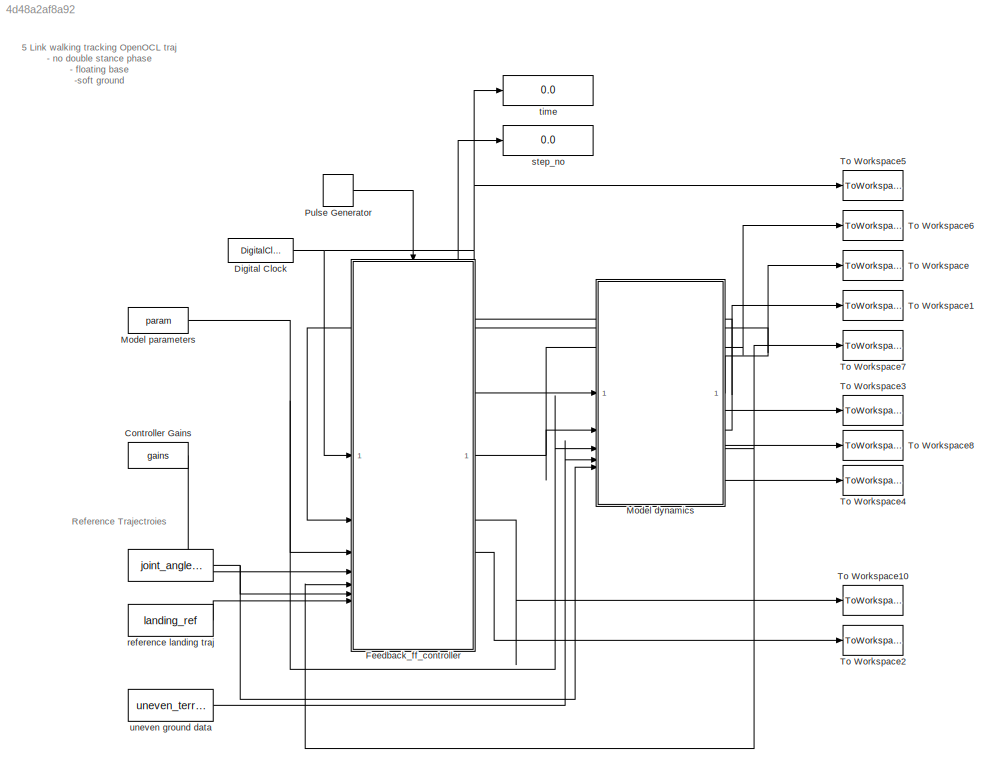
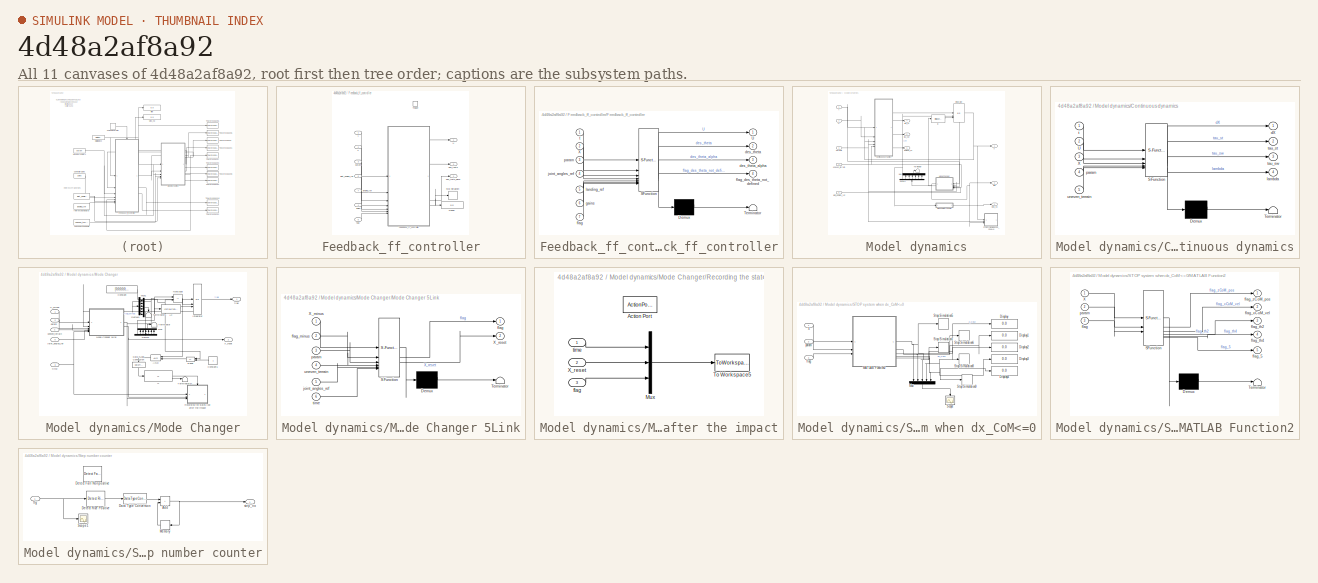
[diagram: thumbnail index - all 11 canvases of the model, root first then tree order]
MODEL slx_4d48a2af8a92
KIND model
CONFIG AbsTol = 1e-8
CONFIG EnableMultiTasking = off
CONFIG FixedStep = 1e-5
CONFIG MaxStep = 1e-3
CONFIG MinStep = auto
CONFIG RelTol = 1e-12
CONFIG SampleTimeConstraint = Unconstrained
CONFIG SolverName = FixedStepAuto
CONFIG StartTime = 0.0
CONFIG StopTime = Tf
BLOCK [Constant]  
  Value = joint_angles_ref
BLOCK [Constant] Controller Gains
  Value = gains
BLOCK [DigitalClock] Digital Clock
  SampleTime = 1e-4
BLOCK [SubSystem] Feedback_ff_controller
  TreatAsAtomicUnit = on
BLOCK [Display] Feedback_ff_controller/Display
  Decimation = 1
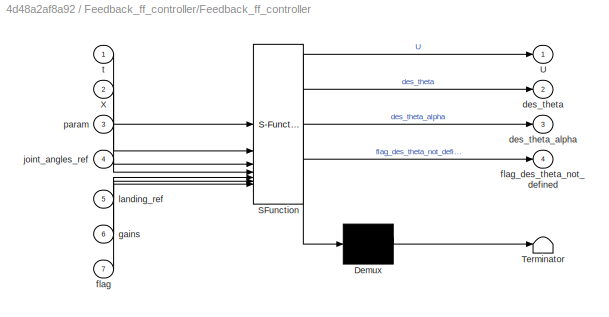
BLOCK [SubSystem] Feedback_ff_controller/Feedback_ff_controller
  ErrorFcn = Stateflow.Translate.translate
  PermitHierarchicalResolution = ExplicitOnly
  SFBlockType = MATLAB Function
  TreatAsAtomicUnit = on
BLOCK [Demux] Feedback_ff_controller/Feedback_ff_controller/ Demux 
  Outputs = 1
BLOCK [S-Function] Feedback_ff_controller/Feedback_ff_controller/ SFunction 
  EnableBusSupport = on
  FunctionName = sf_sfun
  PortCounts = [7 5]
  SFcnIsStateOwnerBlock = off
  SFunctionDeploymentMode = off
  Tag = Stateflow S-Function 4
BLOCK [Terminator] Feedback_ff_controller/Feedback_ff_controller/ Terminator 
BLOCK [Outport] Feedback_ff_controller/Feedback_ff_controller/U
  VectorParamsAs1DForOutWhenUnconnected = off
BLOCK [Inport] Feedback_ff_controller/Feedback_ff_controller/X
  Port = 2
BLOCK [Outport] Feedback_ff_controller/Feedback_ff_controller/des_theta
  Port = 2
BLOCK [Outport] Feedback_ff_controller/Feedback_ff_controller/des_theta_alpha
  Port = 3
BLOCK [Inport] Feedback_ff_controller/Feedback_ff_controller/flag
  Port = 7
BLOCK [Outport] Feedback_ff_controller/Feedback_ff_controller/flag_des_theta_not_defined
  Port = 4
BLOCK [Inport] Feedback_ff_controller/Feedback_ff_controller/gains
  Port = 6
BLOCK [Inport] Feedback_ff_controller/Feedback_ff_controller/joint_angles_ref
  Port = 4
BLOCK [Inport] Feedback_ff_controller/Feedback_ff_controller/landing_ref
  Port = 5
BLOCK [Inport] Feedback_ff_controller/Feedback_ff_controller/param
  Port = 3
BLOCK [Inport] Feedback_ff_controller/Feedback_ff_controller/t
BLOCK [Stop] Feedback_ff_controller/Stop Simulation
BLOCK [TriggerPort] Feedback_ff_controller/Trigger
  PortDimensions = 1
  StatesWhenEnabling = held
  VariantControl = Variant
BLOCK [Outport] Feedback_ff_controller/U
  VectorParamsAs1DForOutWhenUnconnected = off
BLOCK [Inport] Feedback_ff_controller/X
  Port = 2
BLOCK [Outport] Feedback_ff_controller/des_theta
  InitialOutput = [0;0;0;0;0; 0;0;0;0;0]
  Port = 3
  VectorParamsAs1DForOutWhenUnconnected = off
BLOCK [Outport] Feedback_ff_controller/des_theta_alpha
  InitialOutput = [0;0;0;0;0; 0;0;0;0;0; 0]
  Port = 2
  VectorParamsAs1DForOutWhenUnconnected = off
BLOCK [Inport] Feedback_ff_controller/flag
  Port = 5
BLOCK [Inport] Feedback_ff_controller/gains
  Port = 4
BLOCK [Inport] Feedback_ff_controller/joint_angles_ref
  Port = 6
BLOCK [Inport] Feedback_ff_controller/landing_ref
  Port = 7
BLOCK [Inport] Feedback_ff_controller/param
  Port = 3
BLOCK [Inport] Feedback_ff_controller/t
BLOCK [SubSystem] Model dynamics
BLOCK [SubSystem] Model dynamics/Continuous dynamics
  ErrorFcn = Stateflow.Translate.translate
  PermitHierarchicalResolution = ExplicitOnly
  SFBlockType = MATLAB Function
  TreatAsAtomicUnit = on
BLOCK [Demux] Model dynamics/Continuous dynamics/ Demux 
  Outputs = 1
BLOCK [S-Function] Model dynamics/Continuous dynamics/ SFunction 
  EnableBusSupport = on
  FunctionName = sf_sfun
  PortCounts = [5 5]
  SFcnIsStateOwnerBlock = off
  SFunctionDeploymentMode = off
  Tag = Stateflow S-Function 2
BLOCK [Terminator] Model dynamics/Continuous dynamics/ Terminator 
BLOCK [Inport] Model dynamics/Continuous dynamics/U
  Port = 2
BLOCK [Inport] Model dynamics/Continuous dynamics/X
  Port = 3
BLOCK [Outport] Model dynamics/Continuous dynamics/dX
  VectorParamsAs1DForOutWhenUnconnected = off
BLOCK [Outport] Model dynamics/Continuous dynamics/lambda
  Port = 4
BLOCK [Inport] Model dynamics/Continuous dynamics/param
  Port = 4
BLOCK [Inport] Model dynamics/Continuous dynamics/t
BLOCK [Outport] Model dynamics/Continuous dynamics/tau_st
  Port = 2
  VectorParamsAs1DForOutWhenUnconnected = off
BLOCK [Outport] Model dynamics/Continuous dynamics/tau_sw
  Port = 3
BLOCK [Inport] Model dynamics/Continuous dynamics/uneven_terrain
  Port = 5
BLOCK [Demux] Model dynamics/Demux1
  NameLocation = right
  Outputs = 7
BLOCK [InitialCondition] Model dynamics/IC
  Value = Initial_state
BLOCK [Integrator] Model dynamics/Integrator
  ExternalReset = rising
  InitialConditionSource = external
  NameLocation = top
  ShowStatePort = on
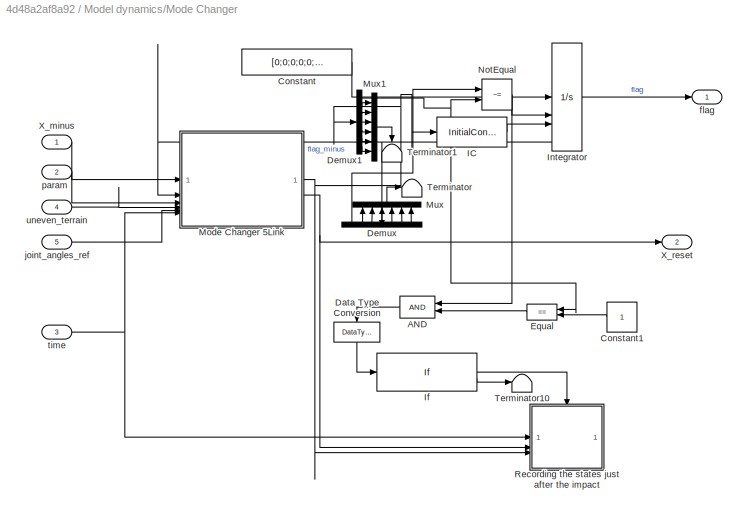
BLOCK [SubSystem] Model dynamics/Mode Changer
  NameLocation = top
BLOCK [Logic] Model dynamics/Mode Changer/AND
  AllPortsSameDT = off
  IconShape = distinctive
  NameLocation = top
  OutDataTypeStr = boolean
BLOCK [Constant] Model dynamics/Mode Changer/Constant
  Value = [0;0;0;0;0;0;0]
BLOCK [Constant] Model dynamics/Mode Changer/Constant1
  NameLocation = top
BLOCK [DataTypeConversion] Model dynamics/Mode Changer/Data Type Conversion
  NameLocation = left
  OutDataTypeStr = double
  RndMeth = Floor
  SaturateOnIntegerOverflow = off
BLOCK [Demux] Model dynamics/Mode Changer/Demux
  NameLocation = right
  Outputs = 7
BLOCK [Demux] Model dynamics/Mode Changer/Demux1
  Outputs = 7
BLOCK [RelationalOperator] Model dynamics/Mode Changer/Equal
  InputSameDT = off
  NameLocation = top
  Operator = ==
  OutDataTypeStr = boolean
  RndMeth = Simplest
BLOCK [InitialCondition] Model dynamics/Mode Changer/IC
  Value = init_flag
BLOCK [If] Model dynamics/Mode Changer/If
BLOCK [Integrator] Model dynamics/Mode Changer/Integrator
  ExternalReset = rising
  InitialConditionSource = external
  NameLocation = top
  ShowStatePort = on
BLOCK [SubSystem] Model dynamics/Mode Changer/Mode Changer 5Link
  ErrorFcn = Stateflow.Translate.translate
  PermitHierarchicalResolution = ExplicitOnly
  SFBlockType = MATLAB Function
  TreatAsAtomicUnit = on
BLOCK [Demux] Model dynamics/Mode Changer/Mode Changer 5Link/ Demux 
  Outputs = 1
BLOCK [S-Function] Model dynamics/Mode Changer/Mode Changer 5Link/ SFunction 
  EnableBusSupport = on
  FunctionName = sf_sfun
  PortCounts = [6 3]
  SFcnIsStateOwnerBlock = off
  SFunctionDeploymentMode = off
  Tag = Stateflow S-Function 6
BLOCK [Terminator] Model dynamics/Mode Changer/Mode Changer 5Link/ Terminator 
BLOCK [Inport] Model dynamics/Mode Changer/Mode Changer 5Link/X_minus
BLOCK [Outport] Model dynamics/Mode Changer/Mode Changer 5Link/X_reset
  Port = 2
  VectorParamsAs1DForOutWhenUnconnected = off
BLOCK [Outport] Model dynamics/Mode Changer/Mode Changer 5Link/flag
  VectorParamsAs1DForOutWhenUnconnected = off
BLOCK [Inport] Model dynamics/Mode Changer/Mode Changer 5Link/flag_minus
  Port = 2
BLOCK [Inport] Model dynamics/Mode Changer/Mode Changer 5Link/joint_angles_ref
  Port = 5
BLOCK [Inport] Model dynamics/Mode Changer/Mode Changer 5Link/param
  Port = 3
BLOCK [Inport] Model dynamics/Mode Changer/Mode Changer 5Link/time
  Port = 6
BLOCK [Inport] Model dynamics/Mode Changer/Mode Changer 5Link/uneven_terrain
  Port = 4
BLOCK [Mux] Model dynamics/Mode Changer/Mux
  DisplayOption = bar
  Inputs = 6
  NameLocation = right
BLOCK [Mux] Model dynamics/Mode Changer/Mux1
  DisplayOption = bar
  Inputs = 6
BLOCK [RelationalOperator] Model dynamics/Mode Changer/NotEqual
  InputSameDT = off
  Operator = ~=
  OutDataTypeStr = boolean
  RndMeth = Simplest
BLOCK [SubSystem] Model dynamics/Mode Changer/Recording the states just after the impact
  TreatAsAtomicUnit = on
BLOCK [ActionPort] Model dynamics/Mode Changer/Recording the states just after the impact/Action Port
  ActionPortLabel = if(u1 > 0)
BLOCK [Mux] Model dynamics/Mode Changer/Recording the states just after the impact/Mux
  DisplayOption = bar
  Inputs = 3
BLOCK [ToWorkspace] Model dynamics/Mode Changer/Recording the states just after the impact/To Workspace5
  FixptAsFi = on
  MaxDataPoints = inf
  SampleTime = -1
  VariableName = x_plus
BLOCK [Inport] Model dynamics/Mode Changer/Recording the states just after the impact/X_reset
  Port = 2
BLOCK [Inport] Model dynamics/Mode Changer/Recording the states just after the impact/flag
  Port = 3
BLOCK [Inport] Model dynamics/Mode Changer/Recording the states just after the impact/time
BLOCK [Terminator] Model dynamics/Mode Changer/Terminator
BLOCK [Terminator] Model dynamics/Mode Changer/Terminator1
  NameLocation = left
BLOCK [Terminator] Model dynamics/Mode Changer/Terminator10
BLOCK [Inport] Model dynamics/Mode Changer/X_minus
BLOCK [Outport] Model dynamics/Mode Changer/X_reset
  Port = 2
  VectorParamsAs1DForOutWhenUnconnected = off
BLOCK [Outport] Model dynamics/Mode Changer/flag
  VectorParamsAs1DForOutWhenUnconnected = off
BLOCK [Inport] Model dynamics/Mode Changer/joint_angles_ref
  Port = 5
BLOCK [Inport] Model dynamics/Mode Changer/param 
  Port = 2
BLOCK [Inport] Model dynamics/Mode Changer/time
  Port = 3
BLOCK [Inport] Model dynamics/Mode Changer/uneven_terrain
  Port = 4
BLOCK [Mux] Model dynamics/Mux
  DisplayOption = bar
  Inputs = 6
  NameLocation = right
BLOCK [SubSystem] Model dynamics/STOP system when dx_CoM<=0
BLOCK [Display] Model dynamics/STOP system when dx_CoM<=0/Display
  Decimation = 1
BLOCK [Display] Model dynamics/STOP system when dx_CoM<=0/Display1
  Decimation = 1
BLOCK [Display] Model dynamics/STOP system when dx_CoM<=0/Display2
  Decimation = 1
BLOCK [Display] Model dynamics/STOP system when dx_CoM<=0/Display3
  Decimation = 1
BLOCK [Display] Model dynamics/STOP system when dx_CoM<=0/Display4
  Decimation = 1
BLOCK [SubSystem] Model dynamics/STOP system when dx_CoM<=0/MATLAB Function2
  ErrorFcn = Stateflow.Translate.translate
  PermitHierarchicalResolution = ExplicitOnly
  SFBlockType = MATLAB Function
  TreatAsAtomicUnit = on
BLOCK [Demux] Model dynamics/STOP system when dx_CoM<=0/MATLAB Function2/ Demux 
  Outputs = 1
BLOCK [S-Function] Model dynamics/STOP system when dx_CoM<=0/MATLAB Function2/ SFunction 
  EnableBusSupport = on
  FunctionName = sf_sfun
  PortCounts = [3 6]
  SFcnIsStateOwnerBlock = off
  SFunctionDeploymentMode = off
  Tag = Stateflow S-Function 7
BLOCK [Terminator] Model dynamics/STOP system when dx_CoM<=0/MATLAB Function2/ Terminator 
BLOCK [Inport] Model dynamics/STOP system when dx_CoM<=0/MATLAB Function2/X
BLOCK [Inport] Model dynamics/STOP system when dx_CoM<=0/MATLAB Function2/flag
  Port = 3
BLOCK [Outport] Model dynamics/STOP system when dx_CoM<=0/MATLAB Function2/flag_5
  Port = 5
BLOCK [Outport] Model dynamics/STOP system when dx_CoM<=0/MATLAB Function2/flag_th2
  Port = 3
BLOCK [Outport] Model dynamics/STOP system when dx_CoM<=0/MATLAB Function2/flag_th4
  Port = 4
BLOCK [Outport] Model dynamics/STOP system when dx_CoM<=0/MATLAB Function2/flag_xCoM_vel
  Port = 2
BLOCK [Outport] Model dynamics/STOP system when dx_CoM<=0/MATLAB Function2/flag_zCoM_pos
BLOCK [Inport] Model dynamics/STOP system when dx_CoM<=0/MATLAB Function2/param
  Port = 2
BLOCK [Mux] Model dynamics/STOP system when dx_CoM<=0/Mux
  DisplayOption = bar
  Inputs = 5
  NameLocation = left
BLOCK [Scope] Model dynamics/STOP system when dx_CoM<=0/Scope
  Floating = off
  NameLocation = left
  NumInputPorts = 1
  ScopeSpecificationString = Simulink.scopes.TimeScopeBlockCfg('CurrentConfiguration', extmgr.ConfigurationSet(extmgr.Configuration('Core','General UI',true),extmgr.Configuration('Core','Source UI',true),extmgr.Configuration('Sources','WiredSimulink',true,'DataLoggingVariableName','ScopeData1'),extmgr.Configuration('Visuals','Time Domain',true,'SerializedDisplays',{struct('MinYLimReal','-0.125','MaxYLimReal','1.125','YLabelRe...<+1417ch>
BLOCK [Stop] Model dynamics/STOP system when dx_CoM<=0/Stop Simulation5
BLOCK [Stop] Model dynamics/STOP system when dx_CoM<=0/Stop Simulation6
BLOCK [Stop] Model dynamics/STOP system when dx_CoM<=0/Stop Simulation7
BLOCK [Stop] Model dynamics/STOP system when dx_CoM<=0/Stop Simulation8
BLOCK [Stop] Model dynamics/STOP system when dx_CoM<=0/Stop Simulation9
BLOCK [Inport] Model dynamics/STOP system when dx_CoM<=0/X
BLOCK [Inport] Model dynamics/STOP system when dx_CoM<=0/flag
  Port = 3
BLOCK [Inport] Model dynamics/STOP system when dx_CoM<=0/param
  Port = 2
BLOCK [SubSystem] Model dynamics/Step number counter
BLOCK [Sum] Model dynamics/Step number counter/Add
  IconShape = rectangular
BLOCK [DataTypeConversion] Model dynamics/Step number counter/Data Type Conversion
  OutDataTypeStr = double
  RndMeth = Floor
  SaturateOnIntegerOverflow = off
BLOCK [Reference] Model dynamics/Step number counter/Detect Fall Nonpositive  REF=simulink/Logic and Bit
Operations/Detect Fall
Nonpositive
  Commented = on
  SourceBlock = simulink/Logic and Bit\nOperations/Detect Fall\nNonpositive
  SourceType = Detect Fall Nonpositive
BLOCK [Reference] Model dynamics/Step number counter/Detect Rise Positive  REF=simulink/Logic and Bit
Operations/Detect Rise
Positive
  SourceBlock = simulink/Logic and Bit\nOperations/Detect Rise\nPositive
  SourceType = Detect Rise Positive
BLOCK [Memory] Model dynamics/Step number counter/Memory
  InheritSampleTime = on
  NameLocation = top
BLOCK [Scope] Model dynamics/Step number counter/Scope1
  Floating = off
  NumInputPorts = 1
  ScopeSpecificationString = Simulink.scopes.TimeScopeBlockCfg('CurrentConfiguration', extmgr.ConfigurationSet(extmgr.Configuration('Core','General UI',true),extmgr.Configuration('Core','Source UI',true),extmgr.Configuration('Sources','WiredSimulink',true,'DataLoggingVariableName','ScopeData1'),extmgr.Configuration('Visuals','Time Domain',true,'SerializedDisplays',{struct('MinYLimReal','-0.125','MaxYLimReal','1.125','YLabelRe...<+1422ch>
BLOCK [Inport] Model dynamics/Step number counter/flg
  SampleTime = sample_time
BLOCK [Outport] Model dynamics/Step number counter/step_no
  VectorParamsAs1DForOutWhenUnconnected = off
BLOCK [Terminator] Model dynamics/Terminator
BLOCK [Inport] Model dynamics/U
  Port = 2
BLOCK [Outport] Model dynamics/X
  VectorParamsAs1DForOutWhenUnconnected = off
BLOCK [Outport] Model dynamics/flag
  Port = 3
BLOCK [Inport] Model dynamics/joint_angles_ref
  Port = 5
BLOCK [Outport] Model dynamics/lambda_ss
  Port = 6
  VectorParamsAs1DForOutWhenUnconnected = off
BLOCK [Inport] Model dynamics/params
  Port = 3
BLOCK [Outport] Model dynamics/step_no
  Port = 2
  VectorParamsAs1DForOutWhenUnconnected = off
BLOCK [Inport] Model dynamics/t
BLOCK [Outport] Model dynamics/tau_st
  Port = 4
  VectorParamsAs1DForOutWhenUnconnected = off
BLOCK [Outport] Model dynamics/tau_sw
  Port = 5
  VectorParamsAs1DForOutWhenUnconnected = off
BLOCK [Inport] Model dynamics/uneven_terrain
  Port = 4
BLOCK [Constant] Model parameters
  NameLocation = top
  OutDataTypeStr = double
  Value = param
BLOCK [DiscretePulseGenerator] Pulse Generator
  Period = 5e-4
  PulseType = Time based
  PulseWidth = 5
BLOCK [ToWorkspace] To Workspace
  FixptAsFi = on
  MaxDataPoints = inf
  SampleTime = sample_time
  VariableName = simout
BLOCK [ToWorkspace] To Workspace1
  FixptAsFi = on
  MaxDataPoints = inf
  SampleTime = sample_time
  VariableName = step_no
BLOCK [ToWorkspace] To Workspace10
  FixptAsFi = on
  MaxDataPoints = inf
  SampleTime = sample_time
  VariableName = des_theta_alpha
BLOCK [ToWorkspace] To Workspace2
  FixptAsFi = on
  MaxDataPoints = inf
  SampleTime = sample_time
  VariableName = des_theta
BLOCK [ToWorkspace] To Workspace3
  FixptAsFi = on
  MaxDataPoints = inf
  SampleTime = sample_time
  VariableName = tau_st
BLOCK [ToWorkspace] To Workspace4
  FixptAsFi = on
  MaxDataPoints = inf
  SampleTime = sample_time
  VariableName = lambda_SS
BLOCK [ToWorkspace] To Workspace5
  FixptAsFi = on
  MaxDataPoints = inf
  SampleTime = sample_time
  VariableName = time
BLOCK [ToWorkspace] To Workspace6
  FixptAsFi = on
  MaxDataPoints = inf
  SampleTime = sample_time
  VariableName = inputTorque
BLOCK [ToWorkspace] To Workspace7
  FixptAsFi = on
  MaxDataPoints = inf
  SampleTime = sample_time
  VariableName = flag
BLOCK [ToWorkspace] To Workspace8
  FixptAsFi = on
  MaxDataPoints = inf
  SampleTime = sample_time
  VariableName = tau_sw
BLOCK [Constant] reference landing traj
  Value = landing_ref
BLOCK [Display] step_no
  Decimation = 1
BLOCK [Display] time
  Decimation = 1
BLOCK [Constant] uneven ground data
  OutDataTypeStr = Bus: uneven_terrain_bus
  Value = uneven_terrain
ANNOTATION (root): 5 Link walking tracking OpenOCL traj - no double stance phase - floating base -soft ground
ANNOTATION (root): Reference Trajectroies
NET  :1 -> Feedback_ff_controller:6, Model dynamics:5
LINE Controller Gains:1 -> Feedback_ff_controller:4
NET Digital Clock:1 -> Feedback_ff_controller:1, Model dynamics:1, To Workspace5:1, time:1
LINE Feedback_ff_controller/Feedback_ff_controller:1 -> Feedback_ff_controller/U:1
LINE Feedback_ff_controller/Feedback_ff_controller:2 -> Feedback_ff_controller/des_theta:1
LINE Feedback_ff_controller/Feedback_ff_controller:3 -> Feedback_ff_controller/des_theta_alpha:1
NET Feedback_ff_controller/Feedback_ff_controller:4 -> Feedback_ff_controller/Display:1, Feedback_ff_controller/Stop Simulation:1
LINE Feedback_ff_controller/X:1 -> Feedback_ff_controller/Feedback_ff_controller:2
LINE Feedback_ff_controller/flag:1 -> Feedback_ff_controller/Feedback_ff_controller:7
LINE Feedback_ff_controller/gains:1 -> Feedback_ff_controller/Feedback_ff_controller:6
LINE Feedback_ff_controller/joint_angles_ref:1 -> Feedback_ff_controller/Feedback_ff_controller:4
LINE Feedback_ff_controller/landing_ref:1 -> Feedback_ff_controller/Feedback_ff_controller:5
LINE Feedback_ff_controller/param:1 -> Feedback_ff_controller/Feedback_ff_controller:3
LINE Feedback_ff_controller/t:1 -> Feedback_ff_controller/Feedback_ff_controller:1
NET Feedback_ff_controller:1 -> Model dynamics:2, To Workspace6:1
LINE Feedback_ff_controller:2 -> To Workspace10:1
LINE Feedback_ff_controller:3 -> To Workspace2:1
LINE Model dynamics/Continuous dynamics:1 -> Model dynamics/Integrator:1
LINE Model dynamics/Continuous dynamics:2 -> Model dynamics/tau_st:1
LINE Model dynamics/Continuous dynamics:3 -> Model dynamics/tau_sw:1
LINE Model dynamics/Continuous dynamics:4 -> Model dynamics/lambda_ss:1
NET Model dynamics/Demux1:1 -> Model dynamics/Integrator:2, Model dynamics/Step number counter:1
LINE Model dynamics/Demux1:2 -> Model dynamics/Mux:1
LINE Model dynamics/Demux1:3 -> Model dynamics/Mux:2
LINE Model dynamics/Demux1:4 -> Model dynamics/Mux:3
LINE Model dynamics/Demux1:5 -> Model dynamics/Mux:4
LINE Model dynamics/Demux1:6 -> Model dynamics/Mux:5
LINE Model dynamics/Demux1:7 -> Model dynamics/Mux:6
LINE Model dynamics/IC:1 -> Model dynamics/Integrator:3
NET Model dynamics/Integrator:1 -> Model dynamics/Continuous dynamics:3, Model dynamics/STOP system when dx_CoM<=0:1, Model dynamics/X:1
LINE Model dynamics/Integrator:state -> Model dynamics/Mode Changer:1
LINE Model dynamics/Mode Changer/AND:1 -> Model dynamics/Mode Changer/Data Type Conversion:1
LINE Model dynamics/Mode Changer/Constant1:1 -> Model dynamics/Mode Changer/Equal:2
LINE Model dynamics/Mode Changer/Constant:1 -> Model dynamics/Mode Changer/Integrator:1
LINE Model dynamics/Mode Changer/Data Type Conversion:1 -> Model dynamics/Mode Changer/If:1
NET Model dynamics/Mode Changer/Demux1:1 -> Model dynamics/Mode Changer/Equal:1, Model dynamics/Mode Changer/NotEqual:2
LINE Model dynamics/Mode Changer/Demux1:2 -> Model dynamics/Mode Changer/Mux1:1
LINE Model dynamics/Mode Changer/Demux1:3 -> Model dynamics/Mode Changer/Mux1:2
LINE Model dynamics/Mode Changer/Demux1:4 -> Model dynamics/Mode Changer/Mux1:3
LINE Model dynamics/Mode Changer/Demux1:5 -> Model dynamics/Mode Changer/Mux1:4
LINE Model dynamics/Mode Changer/Demux1:6 -> Model dynamics/Mode Changer/Mux1:5
LINE Model dynamics/Mode Changer/Demux1:7 -> Model dynamics/Mode Changer/Mux1:6
LINE Model dynamics/Mode Changer/Demux:1 -> Model dynamics/Mode Changer/NotEqual:1
LINE Model dynamics/Mode Changer/Demux:2 -> Model dynamics/Mode Changer/Mux:1
LINE Model dynamics/Mode Changer/Demux:3 -> Model dynamics/Mode Changer/Mux:2
LINE Model dynamics/Mode Changer/Demux:4 -> Model dynamics/Mode Changer/Mux:3
LINE Model dynamics/Mode Changer/Demux:5 -> Model dynamics/Mode Changer/Mux:4
LINE Model dynamics/Mode Changer/Demux:6 -> Model dynamics/Mode Changer/Mux:5
LINE Model dynamics/Mode Changer/Demux:7 -> Model dynamics/Mode Changer/Mux:6
LINE Model dynamics/Mode Changer/Equal:1 -> Model dynamics/Mode Changer/AND:2
LINE Model dynamics/Mode Changer/IC:1 -> Model dynamics/Mode Changer/Integrator:3
LINE Model dynamics/Mode Changer/If:1 -> Model dynamics/Mode Changer/Recording the states just after the impact:ifaction
LINE Model dynamics/Mode Changer/If:2 -> Model dynamics/Mode Changer/Terminator10:1
LINE Model dynamics/Mode Changer/Integrator:1 -> Model dynamics/Mode Changer/flag:1
NET Model dynamics/Mode Changer/Integrator:state -> Model dynamics/Mode Changer/Demux:1, Model dynamics/Mode Changer/Mode Changer 5Link:2
NET Model dynamics/Mode Changer/Mode Changer 5Link:1 -> Model dynamics/Mode Changer/Demux1:1, Model dynamics/Mode Changer/IC:1, Model dynamics/Mode Changer/Recording the states just after the impact:3
NET Model dynamics/Mode Changer/Mode Changer 5Link:2 -> Model dynamics/Mode Changer/Recording the states just after the impact:2, Model dynamics/Mode Changer/X_reset:1
LINE Model dynamics/Mode Changer/Mux1:1 -> Model dynamics/Mode Changer/Terminator1:1
LINE Model dynamics/Mode Changer/Mux:1 -> Model dynamics/Mode Changer/Terminator:1
NET Model dynamics/Mode Changer/NotEqual:1 -> Model dynamics/Mode Changer/AND:1, Model dynamics/Mode Changer/Integrator:2
LINE Model dynamics/Mode Changer/Recording the states just after the impact/Mux:1 -> Model dynamics/Mode Changer/Recording the states just after the impact/To Workspace5:1
LINE Model dynamics/Mode Changer/Recording the states just after the impact/X_reset:1 -> Model dynamics/Mode Changer/Recording the states just after the impact/Mux:2
LINE Model dynamics/Mode Changer/Recording the states just after the impact/flag:1 -> Model dynamics/Mode Changer/Recording the states just after the impact/Mux:3
LINE Model dynamics/Mode Changer/Recording the states just after the impact/time:1 -> Model dynamics/Mode Changer/Recording the states just after the impact/Mux:1
LINE Model dynamics/Mode Changer/X_minus:1 -> Model dynamics/Mode Changer/Mode Changer 5Link:1
LINE Model dynamics/Mode Changer/joint_angles_ref:1 -> Model dynamics/Mode Changer/Mode Changer 5Link:5
LINE Model dynamics/Mode Changer/param :1 -> Model dynamics/Mode Changer/Mode Changer 5Link:3
NET Model dynamics/Mode Changer/time:1 -> Model dynamics/Mode Changer/Mode Changer 5Link:6, Model dynamics/Mode Changer/Recording the states just after the impact:1
LINE Model dynamics/Mode Changer/uneven_terrain:1 -> Model dynamics/Mode Changer/Mode Changer 5Link:4
NET Model dynamics/Mode Changer:1 -> Model dynamics/Demux1:1, Model dynamics/STOP system when dx_CoM<=0:3, Model dynamics/flag:1
LINE Model dynamics/Mode Changer:2 -> Model dynamics/IC:1
LINE Model dynamics/Mux:1 -> Model dynamics/Terminator:1
NET Model dynamics/STOP system when dx_CoM<=0/MATLAB Function2:1 -> Model dynamics/STOP system when dx_CoM<=0/Display:1, Model dynamics/STOP system when dx_CoM<=0/Mux:1, Model dynamics/STOP system when dx_CoM<=0/Stop Simulation5:1
NET Model dynamics/STOP system when dx_CoM<=0/MATLAB Function2:2 -> Model dynamics/STOP system when dx_CoM<=0/Display1:1, Model dynamics/STOP system when dx_CoM<=0/Mux:2, Model dynamics/STOP system when dx_CoM<=0/Stop Simulation6:1
NET Model dynamics/STOP system when dx_CoM<=0/MATLAB Function2:3 -> Model dynamics/STOP system when dx_CoM<=0/Display2:1, Model dynamics/STOP system when dx_CoM<=0/Mux:3, Model dynamics/STOP system when dx_CoM<=0/Stop Simulation7:1
NET Model dynamics/STOP system when dx_CoM<=0/MATLAB Function2:4 -> Model dynamics/STOP system when dx_CoM<=0/Display3:1, Model dynamics/STOP system when dx_CoM<=0/Mux:4, Model dynamics/STOP system when dx_CoM<=0/Stop Simulation8:1
NET Model dynamics/STOP system when dx_CoM<=0/MATLAB Function2:5 -> Model dynamics/STOP system when dx_CoM<=0/Display4:1, Model dynamics/STOP system when dx_CoM<=0/Mux:5, Model dynamics/STOP system when dx_CoM<=0/Stop Simulation9:1
LINE Model dynamics/STOP system when dx_CoM<=0/Mux:1 -> Model dynamics/STOP system when dx_CoM<=0/Scope:1
LINE Model dynamics/STOP system when dx_CoM<=0/X:1 -> Model dynamics/STOP system when dx_CoM<=0/MATLAB Function2:1
LINE Model dynamics/STOP system when dx_CoM<=0/flag:1 -> Model dynamics/STOP system when dx_CoM<=0/MATLAB Function2:3
LINE Model dynamics/STOP system when dx_CoM<=0/param:1 -> Model dynamics/STOP system when dx_CoM<=0/MATLAB Function2:2
NET Model dynamics/Step number counter/Add:1 -> Model dynamics/Step number counter/Memory:1, Model dynamics/Step number counter/step_no:1
LINE Model dynamics/Step number counter/Data Type Conversion:1 -> Model dynamics/Step number counter/Add:1
LINE Model dynamics/Step number counter/Detect Rise Positive:1 -> Model dynamics/Step number counter/Data Type Conversion:1
LINE Model dynamics/Step number counter/Memory:1 -> Model dynamics/Step number counter/Add:2
NET Model dynamics/Step number counter/flg:1 -> Model dynamics/Step number counter/Detect Rise Positive:1, Model dynamics/Step number counter/Scope1:1
LINE Model dynamics/Step number counter:1 -> Model dynamics/step_no:1
LINE Model dynamics/U:1 -> Model dynamics/Continuous dynamics:2
LINE Model dynamics/joint_angles_ref:1 -> Model dynamics/Mode Changer:5
NET Model dynamics/params:1 -> Model dynamics/Continuous dynamics:4, Model dynamics/Mode Changer:2, Model dynamics/STOP system when dx_CoM<=0:2
NET Model dynamics/t:1 -> Model dynamics/Continuous dynamics:1, Model dynamics/Mode Changer:3
NET Model dynamics/uneven_terrain:1 -> Model dynamics/Continuous dynamics:5, Model dynamics/Mode Changer:4
NET Model dynamics:1 -> Feedback_ff_controller:2, To Workspace:1
NET Model dynamics:2 -> To Workspace1:1, step_no:1
NET Model dynamics:3 -> Feedback_ff_controller:5, To Workspace7:1
LINE Model dynamics:4 -> To Workspace3:1
LINE Model dynamics:5 -> To Workspace8:1
LINE Model dynamics:6 -> To Workspace4:1
NET Model parameters:1 -> Feedback_ff_controller:3, Model dynamics:3
LINE Pulse Generator:1 -> Feedback_ff_controller:trigger
LINE reference landing traj:1 -> Feedback_ff_controller:7
LINE uneven ground data:1 -> Model dynamics:4
note: NET lines group one-source signal fan-out (src -> all destinations, sorted); 1:1 wires keep LINE
CHART Model dynamics/Continuous dynamics states=1 transitions=1
  STATE_LABEL 'eML_blk_kernel()'
  STATE_LABEL 'SCRIPT:\nfunction [dX, tau_st, tau_sw, lambda] = fcn(t, U, X, param, uneven_terrain)\n\n%% variables\nx_st = X(1);\ny_st = X(2);\nth1 = X(3);\nth2 = X(4);\nth3 = X(5);\nth4 = X(6);\nth5 = X(7);\n\ndx_st = X(8);\ndy_st = X(9);\ndth1 = X(10);\ndth2 = X(11);\ndth3 = X(12);\ndth4 = X(13);\ndth5 = X(14);\n\nq = [x_st; y_st; th1; th2; th3; th4; th5];\ndq = [dx_st; dy_st; dth1; dth2; dth3; dth4; dth5];\n\n%% parameters\n\nm1 = p...<+3608ch>'
CHART Feedback_ff_controller/Feedback_ff_controller states=1 transitions=1
  STATE_LABEL 'eML_blk_kernel()'
  STATE_LABEL "SCRIPT:\nfunction [U, des_theta, des_theta_alpha, flag_des_theta_not_defined] = fcn(t, X, param, joint_angles_ref, landing_ref, gains,  flag)\ncoder.extrinsic('quadprog');\ncoder.extrinsic('sparse')\n\n%% variables (absolute angles)\nx_st = X(1);\ny_st = X(2);\nth1 = X(3);\nth2 = X(4);\nth3 = X(5);\nth4 = X(6);\nth5 = X(7);\n\ndx_st = X(8);\ndy_st = X(9);\ndth1 = X(10);\ndth2 = X(11);\ndth3 = X(12);\ndth4 = X(13);\nd...<+3608ch>"
CHART Model dynamics/Mode Changer/Mode Changer 5Link states=1 transitions=1
  STATE_LABEL 'eML_blk_kernel()'
  STATE_LABEL 'SCRIPT:\nfunction [flag, X_reset]  = fcn(X_minus, flag_minus, param, uneven_terrain, joint_angles_ref, time)\n\n%% variables\n\nx_st = X_minus(1);\ny_st = X_minus(2);\nth1 = X_minus(3);\nth2 = X_minus(4);\nth3 = X_minus(5);\nth4 = X_minus(6);\nth5 = X_minus(7);\n\ndx_st = X_minus(8);\ndy_st = X_minus(9);\ndth1 = X_minus(10);\ndth2 = X_minus(11);\ndth3 = X_minus(12);\ndth4 = X_minus(13);\ndth5 = X_minus(14);\n\nq = [x_...<+3608ch>'
CHART Model dynamics/STOP system when dx_CoM<=0/MATLAB Function2 states=1 transitions=1
  STATE_LABEL 'eML_blk_kernel()'
  STATE_LABEL 'SCRIPT:\nfunction [flag_zCoM_pos, flag_xCoM_vel, flag_th2, flag_th4, flag_5] = fcn(X,param, flag)\n\n%% variables\nx_st = X(1);\ny_st = X(2);\nth1 = X(3);\nth2 = X(4);\nth3 = X(5);\nth4 = X(6);\nth5 = X(7);\n\ndx_st = X(8);\ndy_st = X(9);\ndth1 = X(10);\ndth2 = X(11);\ndth3 = X(12);\ndth4 = X(13);\ndth5 = X(14);\n\n%% parameters\n\nm1 = param(1);\nm2 = param(2);\nm3 = m2;\nm4 = m1;\nm5 = param(3);\n\nl1 = param(4);\nl2 = para...<+1057ch>'
CHART  states=0 transitions=0
CHART  states=0 transitions=0
CHART  states=0 transitions=0
CHART  states=0 transitions=0
